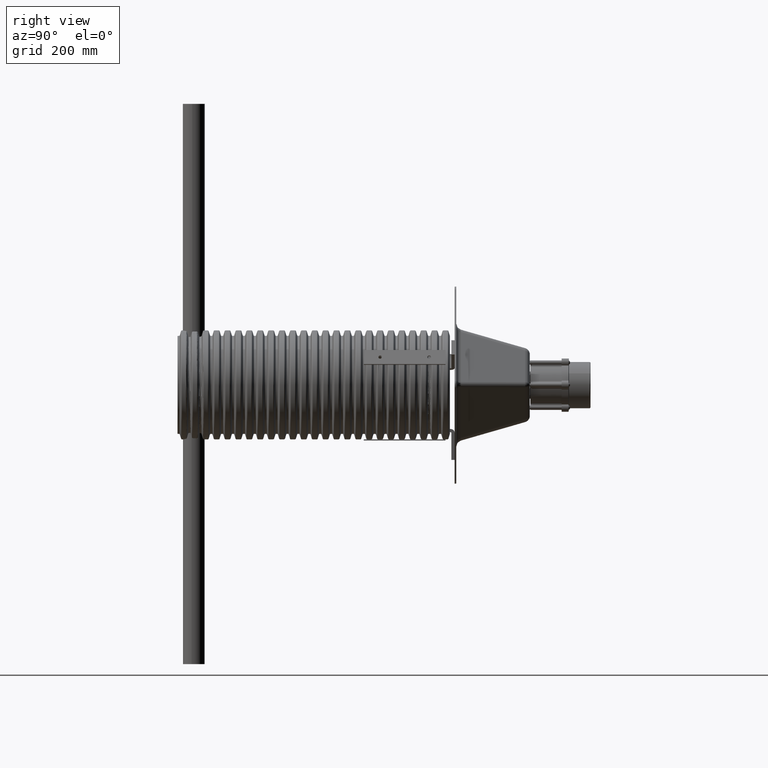
[diagram: clean part render]
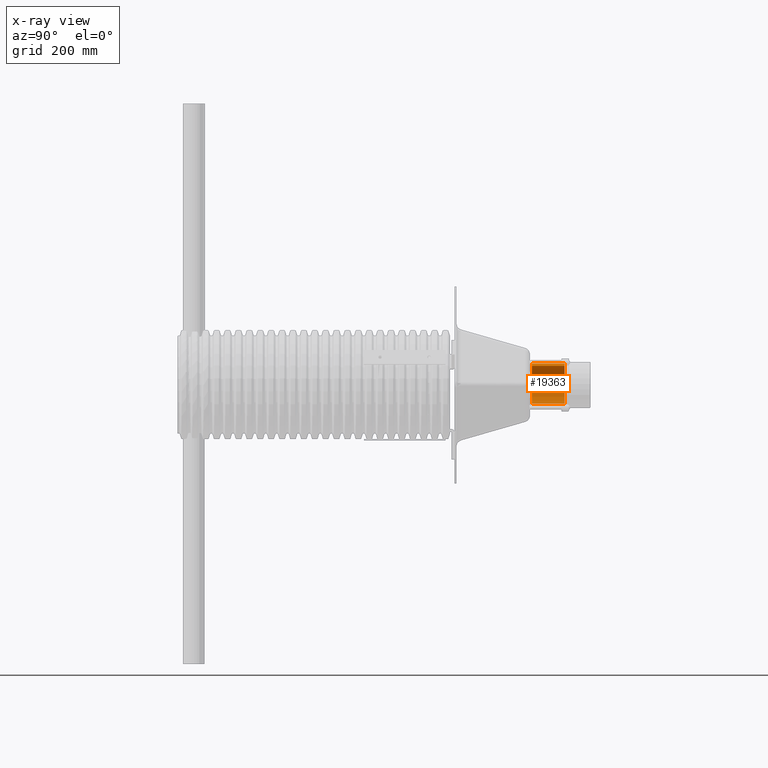
[diagram: x-ray — body ghosted, one internal face saturated and labeled with its STEP entity id]
A machine part, right view, then the same camera in x-ray: the body is ghosted and one INTERNAL B-rep face — a face not visible from any outside direction — is saturated and labeled: STEP entity #19363.
In plain terms, the highlighted cylindrical surface (edge-blend (fillet) strip) has radius 39.5 mm, axis along (-0, 1, 0).
Its self-contained STEP definition (entity closure, byte-faithful):
#688 = CARTESIAN_POINT ( 'NONE',  ( 3.805216029895878800E-012, -3.580970310481523400E-012, 60.00000000000000000 ) ) ;
#736 = DIRECTION ( 'NONE',  ( -1.000000000000000000, 0.0000000000000000000, 0.0000000000000000000 ) ) ;
#905 = CARTESIAN_POINT ( 'NONE',  ( -39.49999999999619900, -3.580970310481523400E-012, 0.0000000000000000000 ) ) ;
#1363 = DIRECTION ( 'NONE',  ( -0.0000000000000000000, -0.0000000000000000000, -1.000000000000000000 ) ) ;
#1783 = AXIS2_PLACEMENT_3D ( 'NONE', #2085, #27296, #5701 ) ;
#2085 = CARTESIAN_POINT ( 'NONE',  ( 3.805216029895878800E-012, -3.580970310481523400E-012, 60.00000000000000000 ) ) ;
#3430 = EDGE_CURVE ( 'NONE', #31333, #34140, #26433, .T. ) ;
#4979 = VERTEX_POINT ( 'NONE', #4980 ) ;
#4980 = CARTESIAN_POINT ( 'NONE',  ( 39.50000000000380100, -3.576132955624890900E-012, 60.00000000000000000 ) ) ;
#5701 = DIRECTION ( 'NONE',  ( 1.000000000000000000, 0.0000000000000000000, 0.0000000000000000000 ) ) ;
#9452 = CIRCLE ( 'NONE', #1783, 39.50000000000000000 ) ;
#11024 = EDGE_LOOP ( 'NONE', ( #26976, #45486, #36491, #29535 ) ) ;
#14682 = EDGE_CURVE ( 'NONE', #4979, #31333, #24244, .T. ) ;
#17617 = CARTESIAN_POINT ( 'NONE',  ( -39.49999999999619900, -3.580970310481523400E-012, 60.00000000000000000 ) ) ;
#17728 = DIRECTION ( 'NONE',  ( -0.0000000000000000000, -0.0000000000000000000, -1.000000000000000000 ) ) ;
#18136 = VECTOR ( 'NONE', #32655, 1000.000000000000000 ) ;
#18836 = EDGE_CURVE ( 'NONE', #36330, #34140, #43328, .T. ) ;
#19363 = ADVANCED_FACE ( 'NONE', ( #41075 ), #22291, .F. ) ;
#22291 = CYLINDRICAL_SURFACE ( 'NONE', #30642, 39.50000000000000000 ) ;
#22713 = CARTESIAN_POINT ( 'NONE',  ( -39.49999999999619900, -3.580970310481523400E-012, 60.00000000000000000 ) ) ;
#24244 = LINE ( 'NONE', #33015, #18136 ) ;
#26433 = CIRCLE ( 'NONE', #32733, 39.50000000000000000 ) ;
#26976 = ORIENTED_EDGE ( 'NONE', *, *, #14682, .F. ) ;
#27296 = DIRECTION ( 'NONE',  ( 0.0000000000000000000, 0.0000000000000000000, 1.000000000000000000 ) ) ;
#29535 = ORIENTED_EDGE ( 'NONE', *, *, #3430, .F. ) ;
#30642 = AXIS2_PLACEMENT_3D ( 'NONE', #688, #1363, #736 ) ;
#31333 = VERTEX_POINT ( 'NONE', #39478 ) ;
#32655 = DIRECTION ( 'NONE',  ( -0.0000000000000000000, -0.0000000000000000000, -1.000000000000000000 ) ) ;
#32733 = AXIS2_PLACEMENT_3D ( 'NONE', #39595, #39446, #39136 ) ;
#33015 = CARTESIAN_POINT ( 'NONE',  ( 39.50000000000380100, -3.576132955624890900E-012, 60.00000000000000000 ) ) ;
#34140 = VERTEX_POINT ( 'NONE', #905 ) ;
#36330 = VERTEX_POINT ( 'NONE', #22713 ) ;
#36491 = ORIENTED_EDGE ( 'NONE', *, *, #18836, .T. ) ;
#36817 = EDGE_CURVE ( 'NONE', #4979, #36330, #9452, .T. ) ;
#39136 = DIRECTION ( 'NONE',  ( 1.000000000000000000, 0.0000000000000000000, 0.0000000000000000000 ) ) ;
#39446 = DIRECTION ( 'NONE',  ( 0.0000000000000000000, 0.0000000000000000000, 1.000000000000000000 ) ) ;
#39478 = CARTESIAN_POINT ( 'NONE',  ( 39.50000000000380100, -3.576132955624890900E-012, 0.0000000000000000000 ) ) ;
#39595 = CARTESIAN_POINT ( 'NONE',  ( 3.805216029895878800E-012, -3.580970310481523400E-012, 0.0000000000000000000 ) ) ;
#41075 = FACE_OUTER_BOUND ( 'NONE', #11024, .T. ) ;
#42225 = VECTOR ( 'NONE', #17728, 1000.000000000000000 ) ;
#43328 = LINE ( 'NONE', #17617, #42225 ) ;
#45486 = ORIENTED_EDGE ( 'NONE', *, *, #36817, .T. ) ;